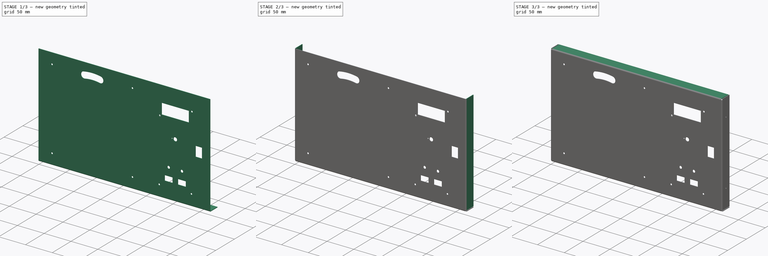
[diagram: build sequence overview — one tinted view per stage of 3, left to right]
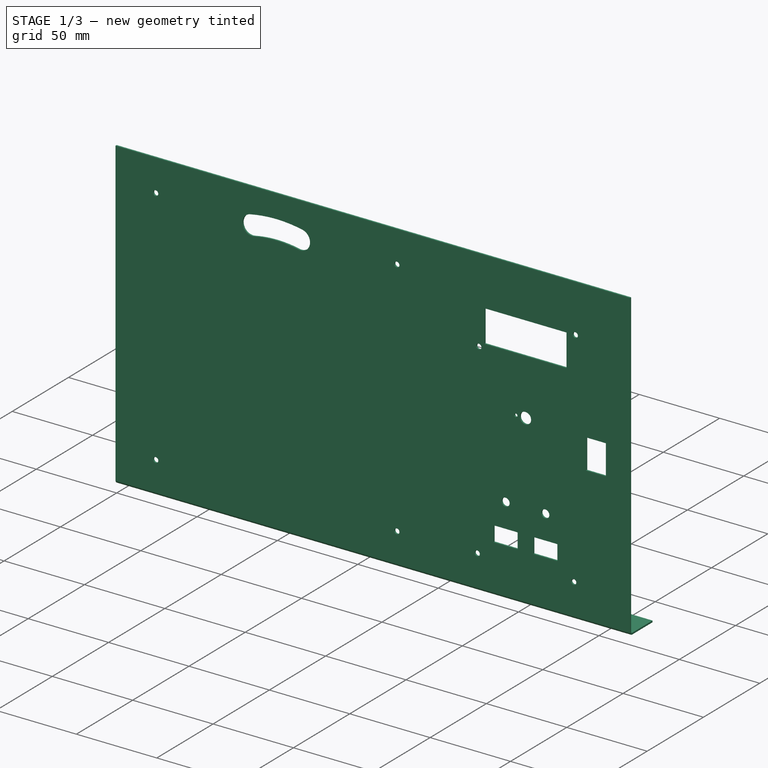
[diagram: stage 1 of 3 — iso view after this stage's code; geometry added in this stage tinted green]
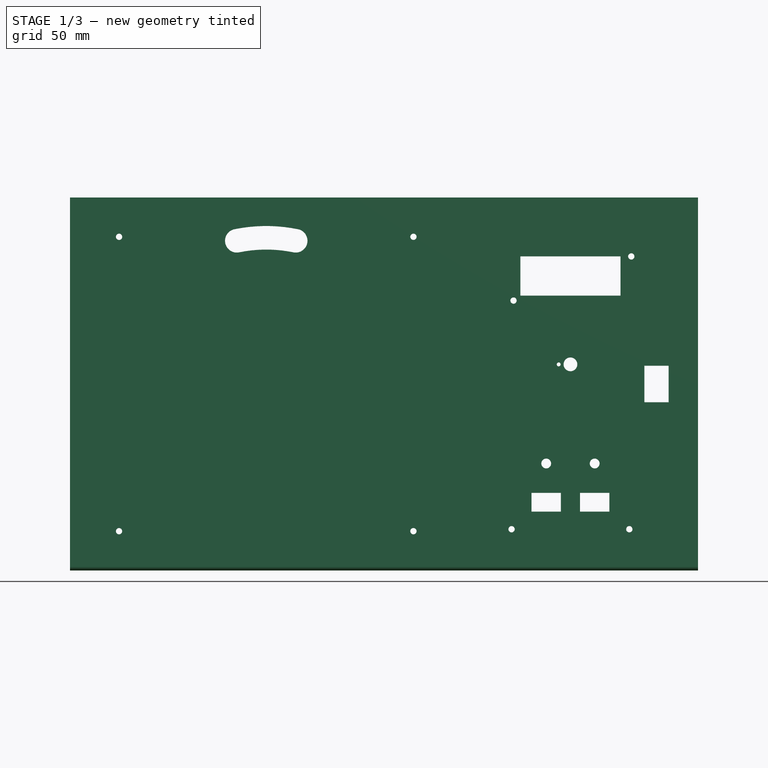
[diagram: stage 1 of 3 — front view after this stage's code; geometry added in this stage tinted green]
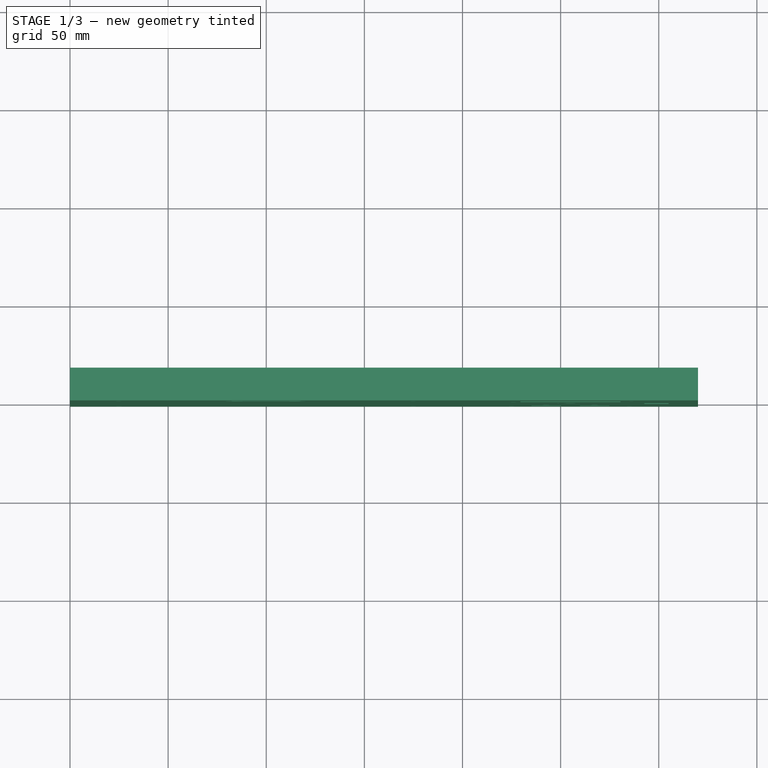
[diagram: stage 1 of 3 — top view after this stage's code; geometry added in this stage tinted green]
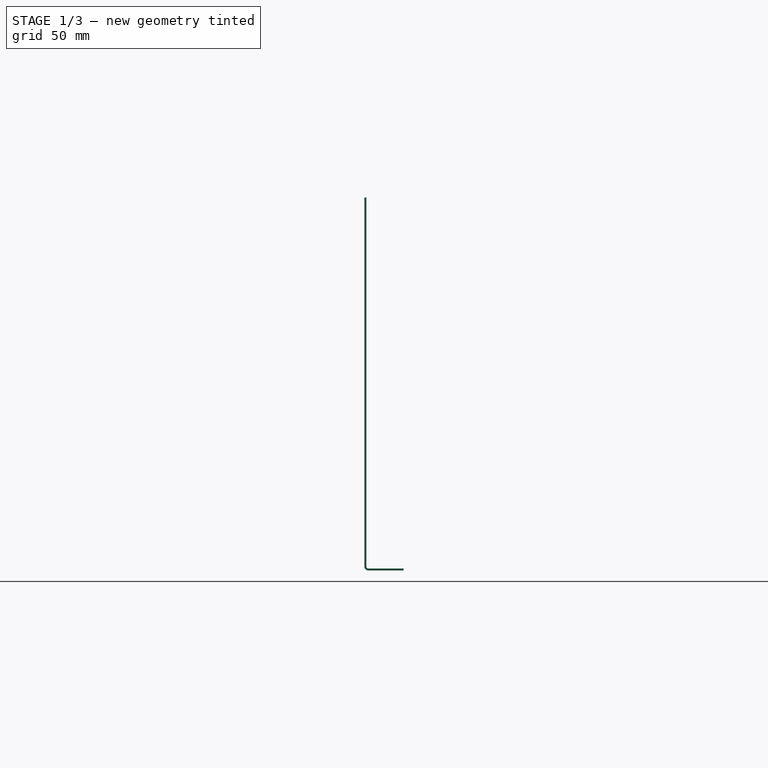
[diagram: stage 1 of 3 — right view after this stage's code; geometry added in this stage tinted green]
FCSTD DOCUMENT  (FreeCAD 1.0R39285 (Git))
Label: SEVER_BEDNA_PP_320mm_DVE_PACKY
License: All rights reserved
LicenseURL: http://en.wikipedia.org/wiki/All_rights_reserved
objects: Sketcher::SketchObject×3, PartDesign::FeaturePython×3, PartDesign::Pocket×2, PartDesign::Pad×1, TechDraw::DrawSVGTemplate×1, TechDraw::DrawProjGroupItem×1, TechDraw::DrawPage×1, Image::ImagePlane×1, PartDesign::Body×1
note: 22 computed .brp shape members not serialized (recipe doc carries the construction recipe); baked Part::Feature solids carry a one-line shape summary decoded from their .brp

FEATURE [Sketcher::SketchObject] Sketch
  ArcFitTolerance = 1e-06
  AttachmentSupport = -> [XZ_Plane001]
  FullyConstrained = true
  MakeInternals = false
  MapMode = 5
  Placement = pos=(0,0,0) rot=(1,0,0;1.5708rad)
  sketch-geometry (48):
    g0: LineSegment [constr] StartX=-90 StartY=70 StartZ=0 EndX=-90 EndY=-70 EndZ=0
    g1: LineSegment [constr] StartX=-70 StartY=-90 StartZ=0 EndX=70 EndY=-90 EndZ=0
    g2: LineSegment [constr] StartX=90 StartY=-70 StartZ=0 EndX=90 EndY=70 EndZ=0
    g3: LineSegment [constr] StartX=70 StartY=90 StartZ=0 EndX=-70 EndY=90 EndZ=0
    g4: ArcOfCircle [constr] CenterX=-70 CenterY=70 CenterZ=0 NormalX=0 NormalY=0 NormalZ=1 AngleXU=0 Radius=20 StartAngle=1.5708 EndAngle=3.14159
    g5: ArcOfCircle [constr] CenterX=-70 CenterY=-70 CenterZ=0 NormalX=0 NormalY=0 NormalZ=1 AngleXU=0 Radius=20 StartAngle=3.14159 EndAngle=4.71239
    g6: ArcOfCircle [constr] CenterX=70 CenterY=-70 CenterZ=0 NormalX=0 NormalY=0 NormalZ=1 AngleXU=0 Radius=20 StartAngle=4.71239 EndAngle=6.28319
    g7: ArcOfCircle [constr] CenterX=70 CenterY=70 CenterZ=0 NormalX=0 NormalY=0 NormalZ=1 AngleXU=0 Radius=20 StartAngle=0 EndAngle=1.5708
    g8: GeomPoint [constr] X=-90 Y=90 Z=0
    g9: GeomPoint [constr] X=90 Y=-90 Z=0
    g10: Circle CenterX=-75 CenterY=75 CenterZ=0 NormalX=0 NormalY=0 NormalZ=1 AngleXU=0 Radius=1.6
    g11: Circle CenterX=75 CenterY=75 CenterZ=0 NormalX=0 NormalY=0 NormalZ=1 AngleXU=0 Radius=1.6
    g12: Circle CenterX=75 CenterY=-75 CenterZ=0 NormalX=0 NormalY=0 NormalZ=1 AngleXU=0 Radius=1.6
    g13: Circle CenterX=-75 CenterY=-75 CenterZ=0 NormalX=0 NormalY=0 NormalZ=1 AngleXU=0 Radius=1.6
    g14: LineSegment StartX=-100 StartY=95 StartZ=0 EndX=-100 EndY=-95 EndZ=0
    g15: LineSegment StartX=-100 StartY=-95 StartZ=0 EndX=220 EndY=-95 EndZ=0
    g16: LineSegment StartX=220 StartY=-95 StartZ=0 EndX=220 EndY=95 EndZ=0
    g17: LineSegment StartX=220 StartY=95 StartZ=0 EndX=-100 EndY=95 EndZ=0
    g18: ArcOfCircle CenterX=0 CenterY=0 CenterZ=0 NormalX=0 NormalY=0 NormalZ=1 AngleXU=0 Radius=80.5 StartAngle=1.36807 EndAngle=1.77352
    g19: ArcOfCircle CenterX=15 CenterY=72.9743 CenterZ=0 NormalX=0 NormalY=0 NormalZ=1 AngleXU=0 Radius=6 StartAngle=4.50966 EndAngle=7.65125
    g20: ArcOfCircle CenterX=-15 CenterY=72.9743 CenterZ=0 NormalX=0 NormalY=0 NormalZ=1 AngleXU=0 Radius=6 StartAngle=1.77352 EndAngle=4.91512
    g21: ArcOfCircle CenterX=0 CenterY=0 CenterZ=0 NormalX=0 NormalY=0 NormalZ=1 AngleXU=0 Radius=68.5 StartAngle=1.36807 EndAngle=1.77352
    g22: LineSegment [constr] StartX=155 StartY=-95 StartZ=0 EndX=155 EndY=95 EndZ=0
    g23: LineSegment StartX=129.5 StartY=65 StartZ=0 EndX=129.5 EndY=45 EndZ=0
    g24: LineSegment StartX=129.5 StartY=45 StartZ=0 EndX=180.5 EndY=45 EndZ=0
    g25: LineSegment StartX=180.5 StartY=45 StartZ=0 EndX=180.5 EndY=65 EndZ=0
    g26: LineSegment StartX=180.5 StartY=65 StartZ=0 EndX=129.5 EndY=65 EndZ=0
    g27: Circle CenterX=155 CenterY=10 CenterZ=0 NormalX=0 NormalY=0 NormalZ=1 AngleXU=0 Radius=3.5
    g28: Circle CenterX=142.65 CenterY=-40.5 CenterZ=0 NormalX=0 NormalY=0 NormalZ=1 AngleXU=0 Radius=2.5
    g29: Circle CenterX=167.35 CenterY=-40.5 CenterZ=0 NormalX=0 NormalY=0 NormalZ=1 AngleXU=0 Radius=2.5
    g30: LineSegment StartX=192.7 StartY=9.3 StartZ=0 EndX=192.7 EndY=-9.3 EndZ=0
    g31: LineSegment StartX=192.7 StartY=-9.3 StartZ=0 EndX=205 EndY=-9.3 EndZ=0
    g32: LineSegment StartX=205 StartY=-9.3 StartZ=0 EndX=205 EndY=9.3 EndZ=0
    g33: LineSegment StartX=205 StartY=9.3 StartZ=0 EndX=192.7 EndY=9.3 EndZ=0
    g34: Circle CenterX=149 CenterY=10 CenterZ=0 NormalX=0 NormalY=0 NormalZ=1 AngleXU=0 Radius=1
    g35: Circle CenterX=126 CenterY=42.5 CenterZ=0 NormalX=0 NormalY=0 NormalZ=1 AngleXU=0 Radius=1.6
    g36: Circle CenterX=186 CenterY=65 CenterZ=0 NormalX=0 NormalY=0 NormalZ=1 AngleXU=0 Radius=1.6
    g37: LineSegment StartX=135.15 StartY=-55.5 StartZ=0 EndX=135.15 EndY=-65 EndZ=0
    g38: LineSegment StartX=135.15 StartY=-65 StartZ=0 EndX=150.15 EndY=-65 EndZ=0
    g39: LineSegment StartX=150.15 StartY=-65 StartZ=0 EndX=150.15 EndY=-55.5 EndZ=0
    g40: LineSegment StartX=150.15 StartY=-55.5 StartZ=0 EndX=135.15 EndY=-55.5 EndZ=0
    g41: LineSegment StartX=159.85 StartY=-55.5 StartZ=0 EndX=159.85 EndY=-65 EndZ=0
    g42: LineSegment StartX=159.85 StartY=-65 StartZ=0 EndX=174.85 EndY=-65 EndZ=0
    g43: LineSegment StartX=174.85 StartY=-65 StartZ=0 EndX=174.85 EndY=-55.5 EndZ=0
    g44: LineSegment StartX=174.85 StartY=-55.5 StartZ=0 EndX=159.85 EndY=-55.5 EndZ=0
    g45: GeomPoint [constr] X=142.65 Y=-55.5 Z=0
    g46: Circle CenterX=125 CenterY=-74 CenterZ=0 NormalX=0 NormalY=0 NormalZ=1 AngleXU=0 Radius=1.6
    g47: Circle CenterX=185 CenterY=-74 CenterZ=0 NormalX=0 NormalY=0 NormalZ=1 AngleXU=0 Radius=1.6
  constraints (127):
    c: Tangent(g0,g4) = -1.5708
    c: Tangent(g0,g5) = -1.5708
    c: Tangent(g1,g5) = -1.5708
    c: Tangent(g1,g6) = -1.5708
    c: Tangent(g2,g6) = -1.5708
    c: Tangent(g2,g7) = -1.5708
    c: Tangent(g3,g7) = -1.5708
    c: Tangent(g3,g4) = -1.5708
    c: Vertical(g0)
    c: Vertical(g2)
    c: Horizontal(g1)
    c: Horizontal(g3)
    c: Equal(g4,g5)
    c: Equal(g5,g6)
    c: Equal(g6,g7)
    c: PointOnObject(g8,g0)
    c: PointOnObject(g8,g3)
    c: PointOnObject(g9,g1)
    c: PointOnObject(g9,g2)
    c: Symmetric(g4,g6,g-1)
    c: Distance(g2,g0) = 180
    c: Radius(g4) = 20
    c: Equal(g1,g0)
    c: Equal(g10,g11)
    c: Equal(g11,g12)
    c: Equal(g12,g13)
    c: Diameter(g10) = 3.2
    c: Symmetric(g10,g11,g-2)
    c: Symmetric(g10,g13,g-1)
    c: Symmetric(g13,g12,g-2)
    c: DistanceX(g10,g11) = 150
    c: DistanceY(g13,g10) = 150
    c: Coincident(g14,g15)
    c: Coincident(g15,g16)
    c: Coincident(g16,g17)
    c: Coincident(g17,g14)
    c: Vertical(g16)
    c: Horizontal(g15)
    c: Horizontal(g17)
    c: DistanceY(g14,g14) = 190
    c: Symmetric(g14,g14,g-1)
    c: Distance(g0,g14) = 10
    c: Distance(g16,g2) = 130
    c: DistanceX(g15,g15) = 320
    c: Coincident(g18,g21)
    c: Tangent(g21,g20) = 1.5708
    c: Tangent(g21,g19) = 1.5708
    c: Tangent(g18,g20) = -1.5708
    c: Tangent(g18,g19) = -1.5708
    c: Coincident(g18,g-1)
    c: Distance(g19,g18) = 74.5
    c: Radius(g20) = 6
    c: Distance(g20,g-2) = 15
    c: Distance(g19,g-2) = 15
    c: PointOnObject(g22,g15)
    c: PointOnObject(g22,g17)
    c: Vertical(g22)
    c: Distance(g16,g22) = 65
    c: Coincident(g23,g24)
    c: Coincident(g24,g25)
    c: Coincident(g25,g26)
    c: Coincident(g26,g23)
    c: Vertical(g23)
    c: Vertical(g25)
    c: Horizontal(g24)
    c: Distance(g23,g25) = 51
    c: Distance(g24,g26) = 20
    c: Symmetric(g23,g25,g22)
    c: Distance(g17,g26) = 30
    c: Diameter(g27) = 7
    c: PointOnObject(g27,g22)
    c: Distance(g27,g24) = 35
    c: Equal(g28,g29)
    c: Diameter(g28) = 5
    c: Symmetric(g28,g29,g22)
    c: DistanceX(g28,g29) = 24.7
    c: Coincident(g30,g31)
    c: Coincident(g31,g32)
    c: Coincident(g32,g33)
    c: Coincident(g33,g30)
    c: Vertical(g30)
    c: Horizontal(g31)
    c: Horizontal(g33)
    c: DistanceX(g33,g33) = 12.3
    c: DistanceY(g30,g30) = 18.6
    c: Symmetric(g32,g31,g-1)
    c: Diameter(g34) = 2
    c: Distance(g34,g22) = 6
    c: DistanceY(g35,g36) = 22.5
    c: DistanceX(g35,g36) = 60
    c: Equal(g35,g36)
    c: Diameter(g35) = 3.2
    c: Distance(g36,g25) = 5.5
    c: Horizontal(g34,g27)
    c: Distance(g31,g16) = 15
    c: Coincident(g37,g38)
    c: Coincident(g38,g39)
    c: Coincident(g39,g40)
    c: Coincident(g40,g37)
    c: Vertical(g37)
    c: Vertical(g39)
    c: Horizontal(g38)
    c: Horizontal(g40)
    c: Coincident(g41,g42)
    c: Coincident(g42,g43)
    c: Coincident(g43,g44)
    c: Coincident(g44,g41)
    c: Vertical(g41)
    c: Vertical(g43)
    c: Horizontal(g42)
    c: Horizontal(g44)
    c: Equal(g40,g44)
    c: Equal(g39,g41)
    c: DistanceY(g37,g37) = 9.5
    c: DistanceX(g40,g40) = 15
    c: Symmetric(g39,g41,g22)
    c: DistanceY(g43,g29) = 15
    c: Distance(g42,g15) = 30
    c: Symmetric(g40,g40,g45)
    c: Vertical(g28,g45)
    c: DistanceX(g38,g41) = 9.7
    c: Symmetric(g46,g47,g22)
    c: DistanceX(g46,g47) = 60
    c: Equal(g46,g47)
    c: Diameter(g46) = 3.2
    c: DistanceY(g47,g42) = 9
    c: PointOnObject(g36,g26)
FEATURE [PartDesign::Pad] Pad
  Direction = (0,-1,2e-16)
  Length = 1
  Length2 = 10
  Placement = pos=(0,0,0) rot=(1,0,0;1.5708rad)
  Profile = -> Sketch
  ReferenceAxis = -> Sketch [N_Axis]
  Suppressed = false
  Type = 0
FEATURE [PartDesign::FeaturePython] Bend  # WARN: FeaturePython — macro-defined, semantics opaque (R4)
  AngleFaceRefMode = false
  AutoMiter = false
  BaseFeature = -> Pad
  BendType = 1
  LengthList = [20]
  LengthSpec = 1
  NonperforationMaxLength = 5
  OffsetFaceRefMode = false
  OffsetType = 1
  OffsetTypeOffset = 0
  Perforate = false
  PerforationAngle = 0
  PerforationInitialLength = 5
  PerforationMaxLength = 5
  RelativeAngleToRef = 0
  ReliefFactor = 0.7
  SupplAngleRef = false
  Suppressed = false
  UseReliefFactor = false
  angle = 90
  baseObject = -> Pad [Edge7]
  bendAList = [90]
  extend1 = 0
  extend2 = 0
  gap1 = 0
  gap2 = 0
  invert = true
  kfactor = 0.5
  length = 20
  maxExtendDist = 5
  minGap = 0.2
  minReliefGap = 1
  miterangle1 = 0
  miterangle2 = 0
  offset = 0
  radius = 1
  reliefType = 0
  reliefd = 1
  reliefw = 0.8
  sketchflip = false
  sketchinvert = false
  unfold = false
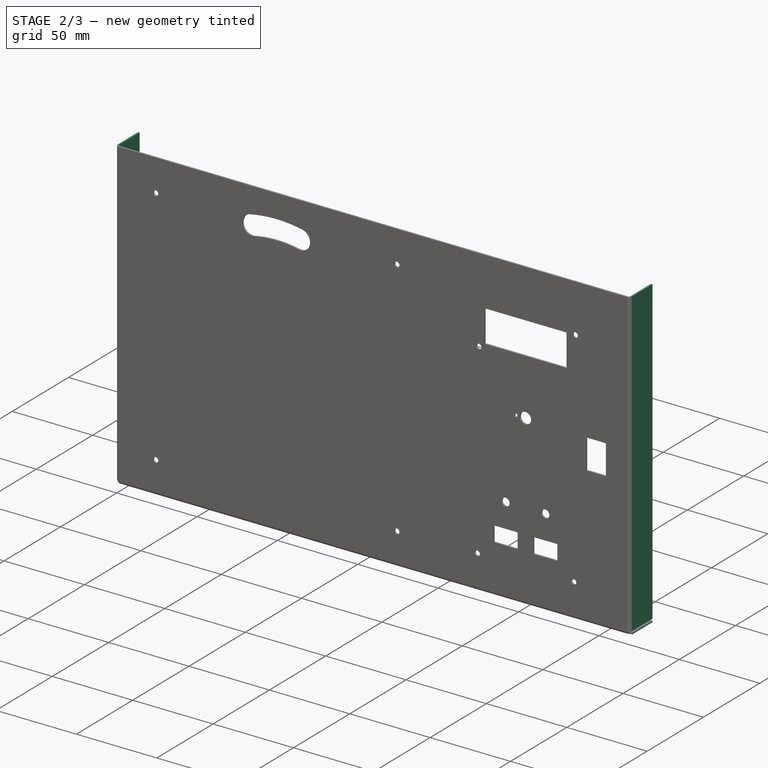
[diagram: stage 2 of 3 — iso view after this stage's code; geometry added in this stage tinted green]
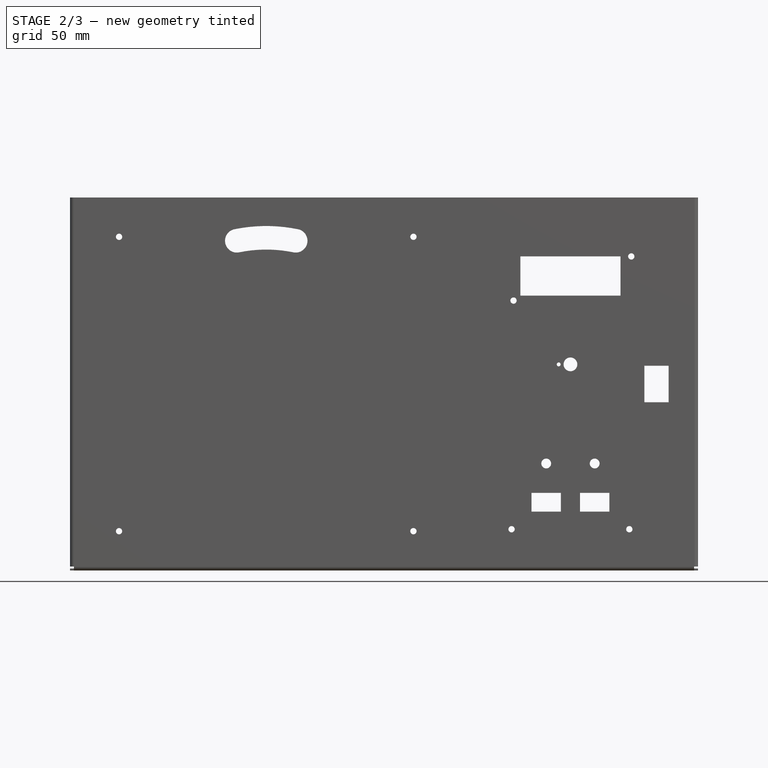
[diagram: stage 2 of 3 — front view after this stage's code; geometry added in this stage tinted green]
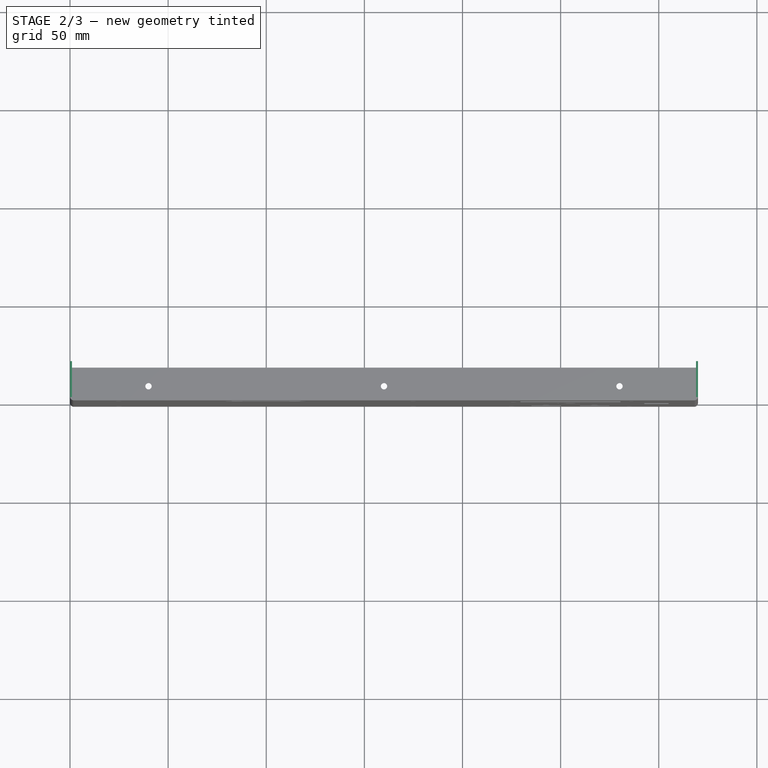
[diagram: stage 2 of 3 — top view after this stage's code; geometry added in this stage tinted green]
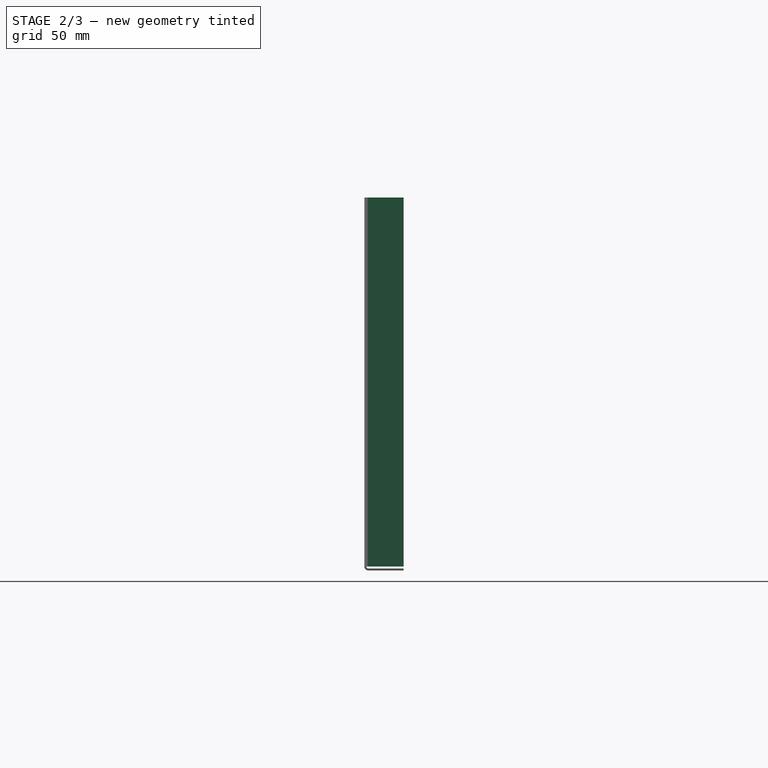
[diagram: stage 2 of 3 — right view after this stage's code; geometry added in this stage tinted green]
FEATURE [PartDesign::FeaturePython] Bend001  # WARN: FeaturePython — macro-defined, semantics opaque (R4)
  AngleFaceRefMode = false
  AutoMiter = false
  BaseFeature = -> Bend
  BendType = 1
  LengthList = [20]
  LengthSpec = 1
  NonperforationMaxLength = 5
  OffsetFaceRefMode = false
  OffsetType = 1
  OffsetTypeOffset = 0
  Perforate = false
  PerforationAngle = 0
  PerforationInitialLength = 5
  PerforationMaxLength = 5
  RelativeAngleToRef = 0
  ReliefFactor = 0.7
  SupplAngleRef = false
  Suppressed = false
  UseReliefFactor = false
  angle = 90
  baseObject = -> Bend [Edge6,Edge1]
  bendAList = [90]
  extend1 = 0
  extend2 = 0
  gap1 = 0
  gap2 = 0
  invert = false
  kfactor = 0.5
  length = 20
  maxExtendDist = 5
  minGap = 0.2
  minReliefGap = 1
  miterangle1 = 0
  miterangle2 = 0
  offset = 0
  radius = 1
  reliefType = 0
  reliefd = 1
  reliefw = 0.8
  sketchflip = false
  sketchinvert = false
  unfold = false
FEATURE [Sketcher::SketchObject] Sketch001
  ArcFitTolerance = 1e-06
  AttachmentSupport = -> [Bend001]
  ExternalGeometry = -> [Bend001]
  FullyConstrained = true
  MakeInternals = false
  MapMode = 5
  Placement = pos=(0,0,-94) rot=(0,0,1;0rad)
  sketch-geometry (6):
    g0: Circle CenterX=60 CenterY=9.5 CenterZ=0 NormalX=0 NormalY=0 NormalZ=1 AngleXU=0 Radius=1.6
    g1: Circle CenterX=-60 CenterY=9.5 CenterZ=0 NormalX=0 NormalY=0 NormalZ=1 AngleXU=0 Radius=1.6
    g2: Circle CenterX=180 CenterY=9.5 CenterZ=0 NormalX=0 NormalY=0 NormalZ=1 AngleXU=0 Radius=1.6
    g3: LineSegment [constr] StartX=60 StartY=19 StartZ=0 EndX=60 EndY=1 EndZ=0
    g4: LineSegment [constr] StartX=-140 StartY=9.5 StartZ=0 EndX=260 EndY=9.5 EndZ=0
    g5: GeomPoint [constr] X=60 Y=9.5 Z=0
  constraints (14):
    c: Equal(g0,g1)
    c: Equal(g1,g2)
    c: DistanceX(g1,g0) = 120
    c: Diameter(g1) = 3.2
    c: Symmetric(g-4,g-4,g3)
    c: Symmetric(g-3,g-3,g3)
    c: Horizontal(g4)
    c: Symmetric(g4,g4,g5)
    c: PointOnObject(g1,g4)
    c: Symmetric(g1,g2,g3)
    c: DistanceX(g4,g4) = 400
    c: PointOnObject(g5,g3)
    c: Distance(g-3,g4) = 8.5
    c: Coincident(g0,g5)
FEATURE [PartDesign::Pocket] Pocket
  BaseFeature = -> Bend001
  Direction = (0,0,-1)
  Length = 5
  Length2 = 5
  Profile = -> Sketch001
  ReferenceAxis = -> Sketch001 [N_Axis]
  Suppressed = false
  Type = 1
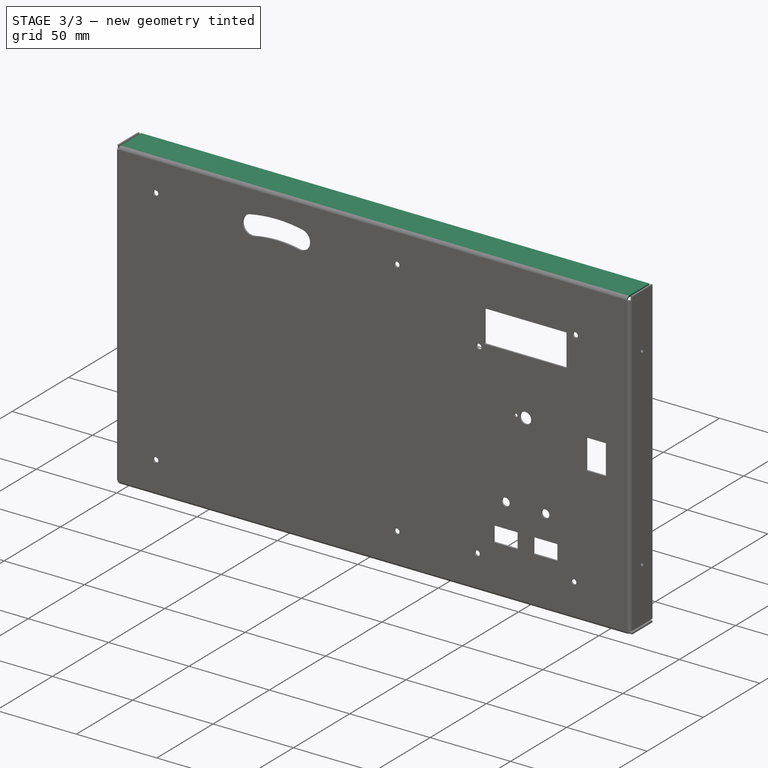
[diagram: stage 3 of 3 — iso view after this stage's code; geometry added in this stage tinted green]
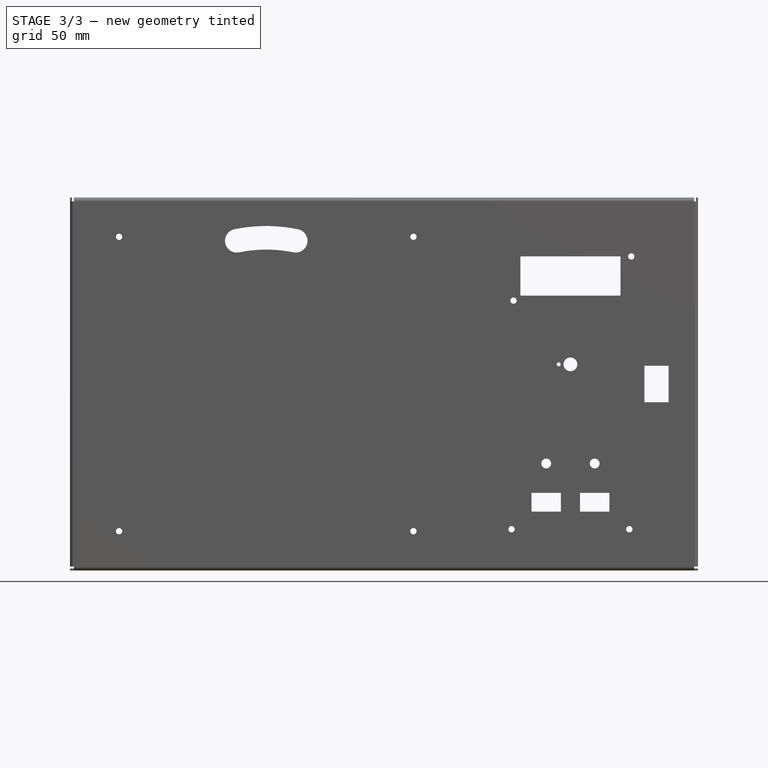
[diagram: stage 3 of 3 — front view after this stage's code; geometry added in this stage tinted green]
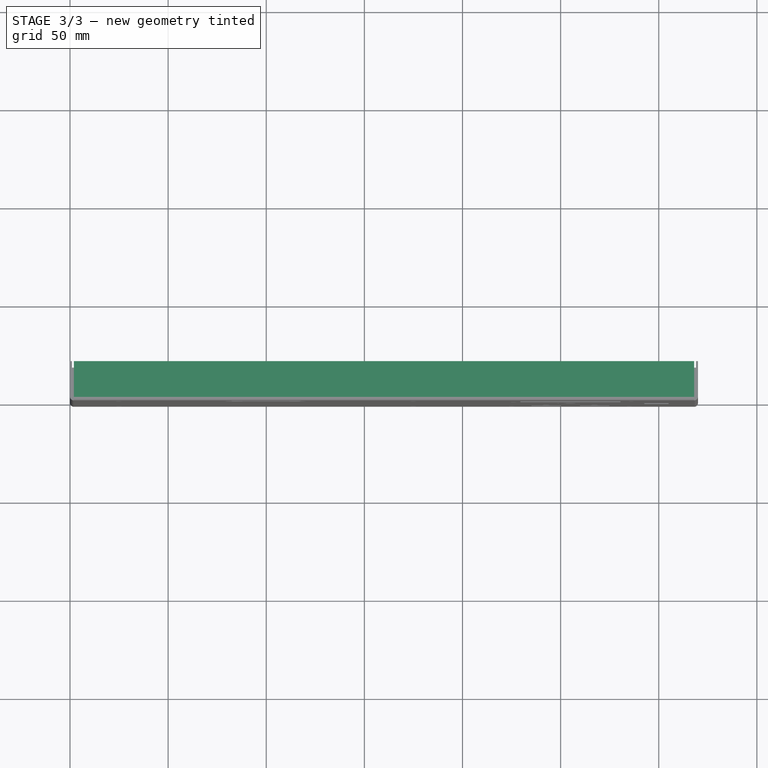
[diagram: stage 3 of 3 — top view after this stage's code; geometry added in this stage tinted green]
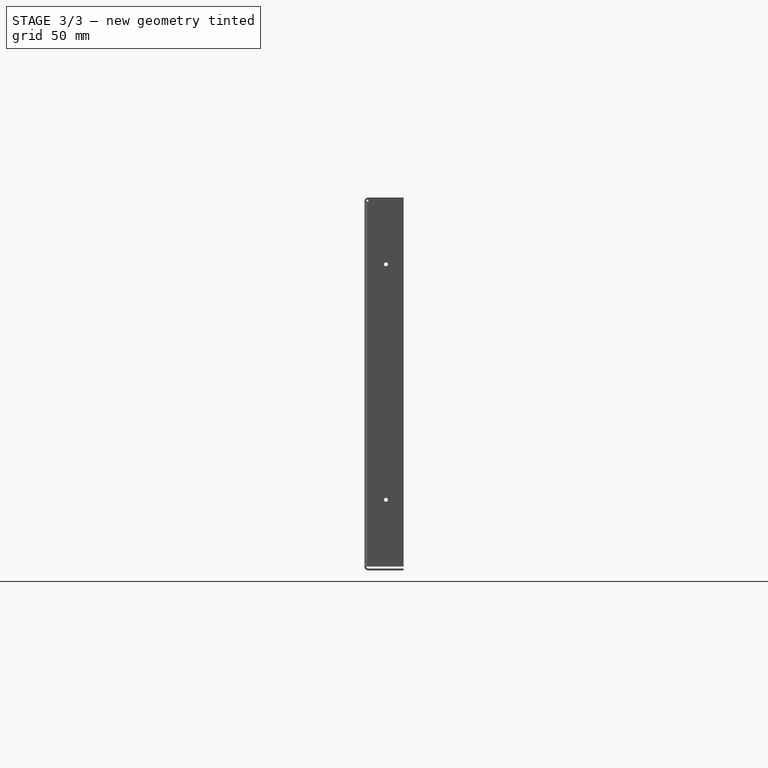
[diagram: stage 3 of 3 — right view after this stage's code; geometry added in this stage tinted green]
FEATURE [TechDraw::DrawSVGTemplate] Template  label="Šablona"
  Height = 297
  Orientation = 1
  Template = C:/Program Files/FreeCAD 1.0/data/Mod/TechDraw/Templates/A3_Landscape_blank.svg
  Width = 420
FEATURE [TechDraw::DrawProjGroupItem] View
  CoarseView = false
  Direction = (0,-1,0)
  Focus = 100
  HardHidden = false
  IsoCount = 0
  IsoHidden = false
  IsoVisible = false
  LockPosition = false
  Perspective = false
  Rotation = 0
  RotationVector = (1,0,0)
  ScaleType = 0
  ScrubCount = 1
  SeamHidden = false
  SeamVisible = false
  SmoothHidden = false
  SmoothVisible = true
  Source = -> [Sketch]
  Type = 0
  X = 210.159
  XDirection = (1,0,0)
  Y = 158.358
FEATURE [TechDraw::DrawPage] Page  label="Stránka"
  KeepUpdated = true
  NextBalloonIndex = 1
  ProjectionType = 0
  Template = -> Template
  Views = -> [View]
FEATURE [Sketcher::SketchObject] Sketch002
  ArcFitTolerance = 1e-06
  AttachmentSupport = -> [Pocket]
  ExternalGeometry = -> [Pocket]
  FullyConstrained = true
  MakeInternals = false
  MapMode = 5
  Placement = pos=(220,0,4.84e-14) rot=(0.57735,0.57735,0.57735;2.0944rad)
  sketch-geometry (4):
    g0: Circle CenterX=10 CenterY=61 CenterZ=0 NormalX=0 NormalY=0 NormalZ=1 AngleXU=0 Radius=1
    g1: Circle CenterX=10 CenterY=-59 CenterZ=0 NormalX=0 NormalY=0 NormalZ=1 AngleXU=0 Radius=1
    g2: LineSegment [constr] StartX=10 StartY=95 StartZ=0 EndX=10 EndY=-93 EndZ=0
    g3: GeomPoint [constr] X=10 Y=1 Z=0
  constraints (8):
    c: DistanceY(g1,g0) = 120
    c: Equal(g0,g1)
    c: Diameter(g0) = 2
    c: Symmetric(g-3,g-3,g2)
    c: Symmetric(g-4,g-4,g2)
    c: Symmetric(g2,g2,g3)
    c: Symmetric(g1,g0,g3)
    c: PointOnObject(g0,g2)
FEATURE [PartDesign::Pocket] Pocket001
  BaseFeature = -> Pocket
  Direction = (-1,0,0)
  Length = 5
  Length2 = 5
  Profile = -> Sketch002
  ReferenceAxis = -> Sketch002 [N_Axis]
  Suppressed = false
  Type = 1
FEATURE [Image::ImagePlane] p__edn___panel_2TL  label="přední panel 2TL"
  Placement = pos=(60,-2,0) rot=(1,0,0;1.5708rad)
  XSize = 320.76
  YSize = 190.754
FEATURE [PartDesign::FeaturePython] Bend002  # WARN: FeaturePython — macro-defined, semantics opaque (R4)
  AngleFaceRefMode = false
  AutoMiter = false
  BaseFeature = -> Pocket001
  BendType = 1
  LengthList = [20]
  LengthSpec = 1
  NonperforationMaxLength = 5
  OffsetFaceRefMode = false
  OffsetType = 1
  OffsetTypeOffset = 0
  Perforate = false
  PerforationAngle = 0
  PerforationInitialLength = 5
  PerforationMaxLength = 5
  RelativeAngleToRef = 0
  ReliefFactor = 0.7
  SupplAngleRef = false
  Suppressed = false
  UseReliefFactor = false
  angle = 90
  baseObject = -> Pocket001 [Edge4]
  bendAList = [90]
  extend1 = 0
  extend2 = 0
  gap1 = 0
  gap2 = 0
  invert = false
  kfactor = 0.5
  length = 20
  maxExtendDist = 5
  minGap = 0.2
  minReliefGap = 1
  miterangle1 = 0
  miterangle2 = 0
  offset = 0
  radius = 1
  reliefType = 0
  reliefd = 1
  reliefw = 0.8
  sketchflip = false
  sketchinvert = false
  unfold = false
FEATURE [PartDesign::Body] Body
  AllowCompound = false
  Group = -> [Sketch,Pad,Bend,Bend001,Sketch001,Pocket,Sketch002,Pocket001,Bend002]
  Origin = -> Origin001
  Tip = -> Bend002
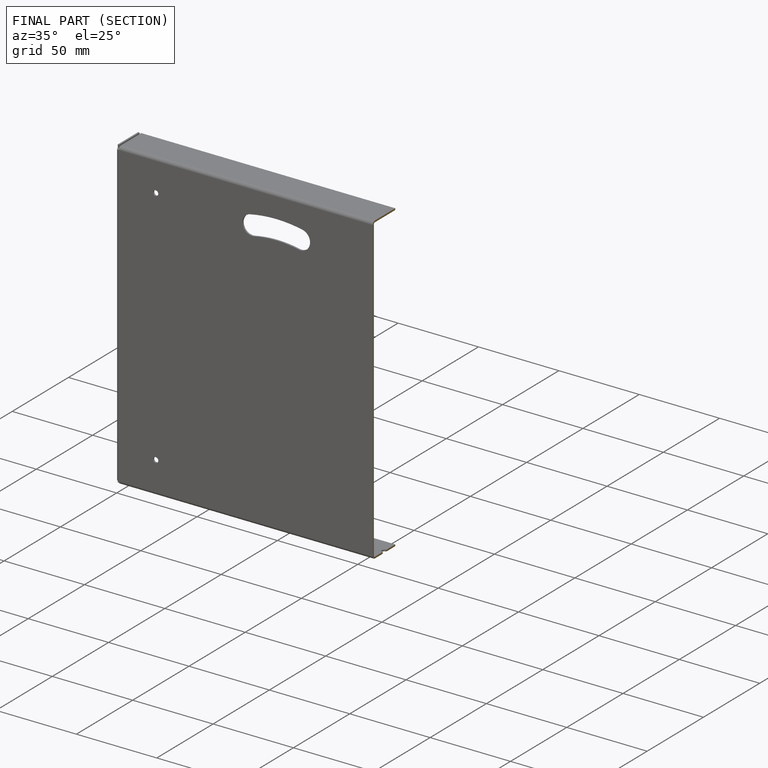
[diagram: finished part — half-section view (interior)]
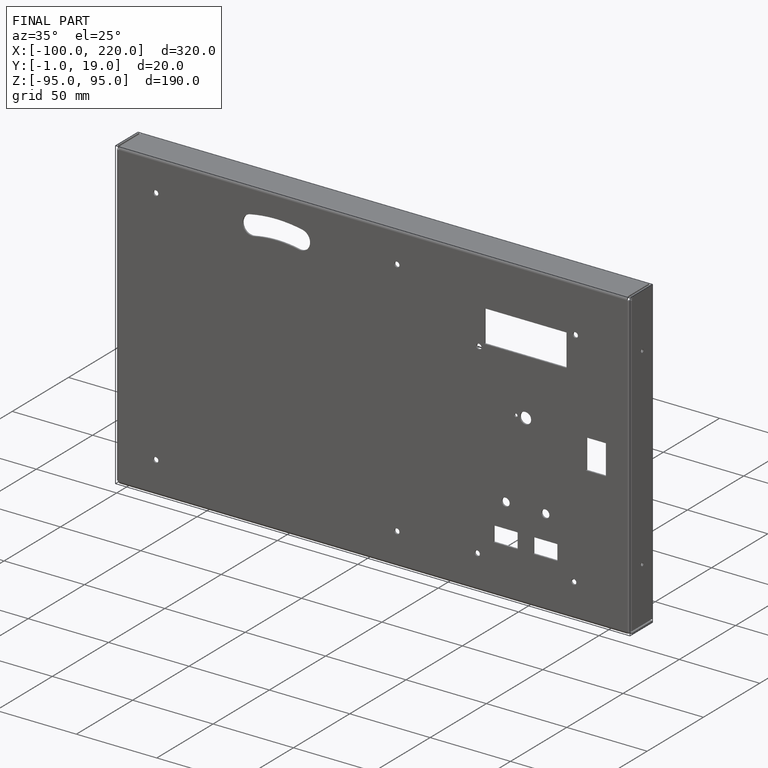
[diagram: finished part — iso view with bounding-box wireframe]
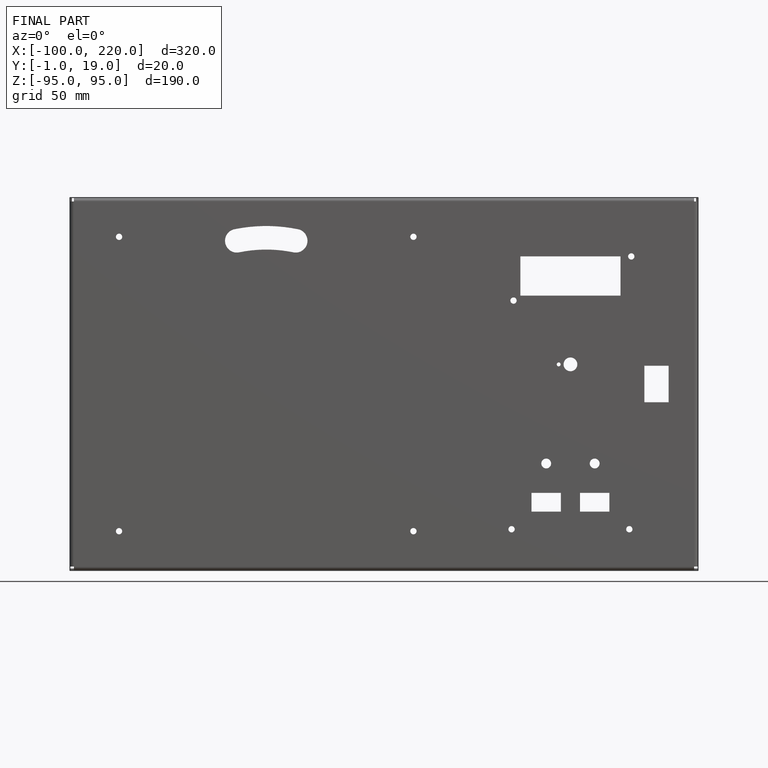
[diagram: finished part — front view with bounding-box wireframe]
